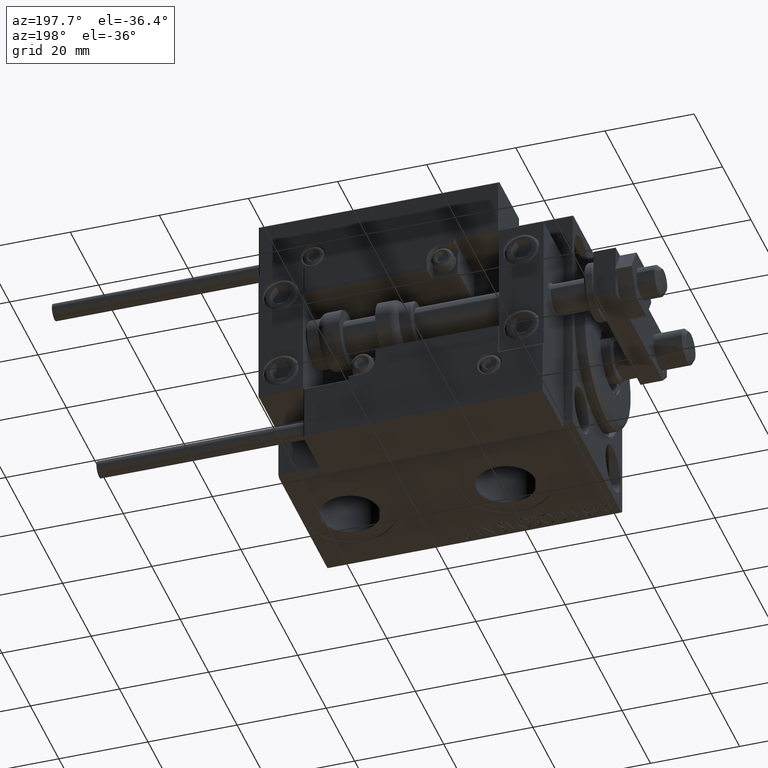
[diagram: clean part render]
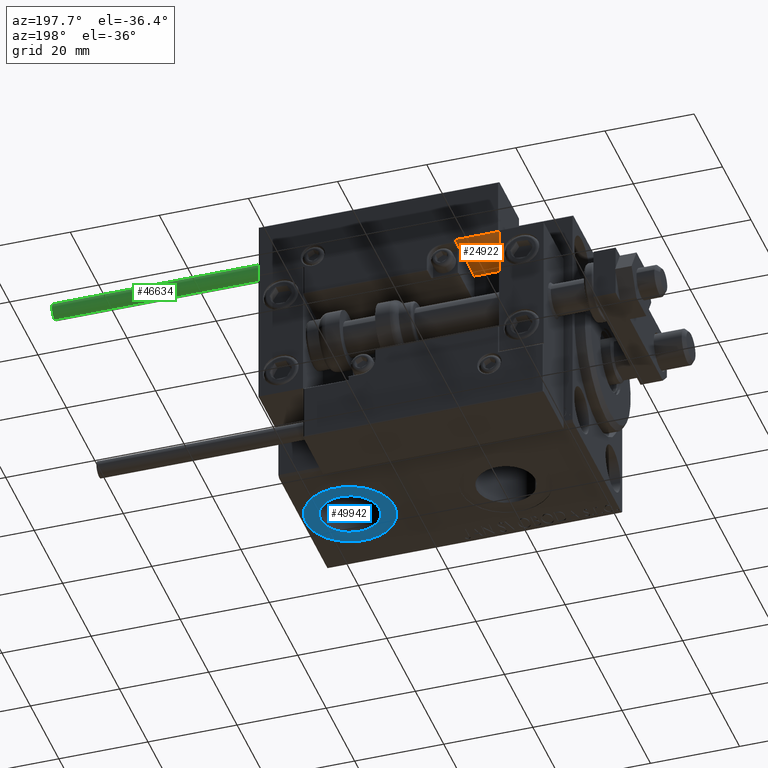
[diagram: same view with three faces highlighted in distinct colors, each labeled with its STEP entity id]
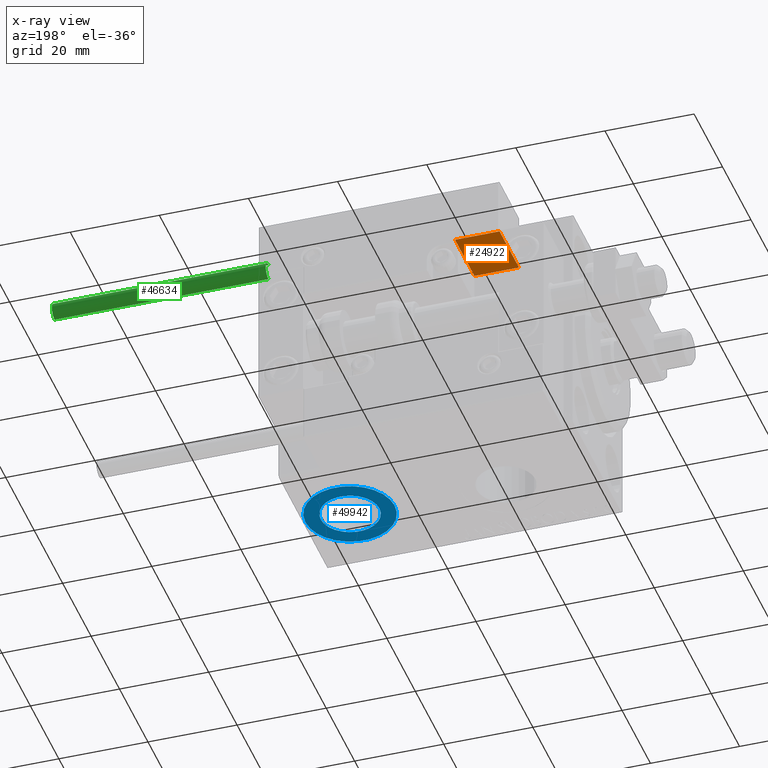
[diagram: x-ray of the same camera — body ghosted, the three highlighted faces saturated]
A machine part, auxiliary view with three faces highlighted in distinct colors.
The next image is the same camera in x-ray (body ghosted, the three faces saturated) — at least one of them is partly hidden behind the body in this view.
Their STEP definitions:

[orange] entity #24922 — the highlighted planar face has unit normal (0, 0, 1).
#106 = CARTESIAN_POINT ( 'NONE',  ( 27.00000000000006395, 7.000000000000007994, 0.000000000000000000 ) ) ;
#2960 = DIRECTION ( 'NONE',  ( 1.734723475976796001E-16, 1.000000000000000000, -0.000000000000000000 ) ) ;
#3652 = DIRECTION ( 'NONE',  ( -1.000000000000000000, 1.734723475976796001E-16, -0.000000000000000000 ) ) ;
#4124 = VERTEX_POINT ( 'NONE', #7669 ) ;
#6730 = LINE ( 'NONE', #29862, #39027 ) ;
#7273 = CARTESIAN_POINT ( 'NONE',  ( 17.00000000000000000, 7.000000000000009770, 0.000000000000000000 ) ) ;
#7507 = CARTESIAN_POINT ( 'NONE',  ( 17.00000000000000000, 7.000000000000009770, 13.70000000000000107 ) ) ;
#7669 = CARTESIAN_POINT ( 'NONE',  ( 17.00000000000000000, 7.000000000000009770, 0.000000000000000000 ) ) ;
#7772 = DIRECTION ( 'NONE',  ( 1.000000000000000000, -1.734723475976796001E-16, 0.000000000000000000 ) ) ;
#8526 = LINE ( 'NONE', #40125, #12982 ) ;
#10334 = DIRECTION ( 'NONE',  ( -0.000000000000000000, -0.000000000000000000, -1.000000000000000000 ) ) ;
#10604 = LINE ( 'NONE', #7507, #23503 ) ;
#11047 = ORIENTED_EDGE ( 'NONE', *, *, #26150, .T. ) ;
#11488 = CARTESIAN_POINT ( 'NONE',  ( 27.00000000000006395, 7.000000000000007994, 13.70000000000000107 ) ) ;
#12632 = DIRECTION ( 'NONE',  ( -0.000000000000000000, -0.000000000000000000, -1.000000000000000000 ) ) ;
#12982 = VECTOR ( 'NONE', #12632, 1000.000000000000000 ) ;
#14564 = VERTEX_POINT ( 'NONE', #11488 ) ;
#15009 = EDGE_LOOP ( 'NONE', ( #40142, #28550, #24274, #11047 ) ) ;
#15388 = AXIS2_PLACEMENT_3D ( 'NONE', #17872, #2960, #33790 ) ;
#17872 = CARTESIAN_POINT ( 'NONE',  ( 17.00000000000000000, 7.000000000000009770, 14.00000000000000000 ) ) ;
#17891 = VECTOR ( 'NONE', #7772, 1000.000000000000000 ) ;
#18945 = EDGE_CURVE ( 'NONE', #14564, #50613, #8526, .T. ) ;
#22962 = LINE ( 'NONE', #7273, #17891 ) ;
#23503 = VECTOR ( 'NONE', #3652, 1000.000000000000000 ) ;
#24274 = ORIENTED_EDGE ( 'NONE', *, *, #47004, .T. ) ;
#24922 = ADVANCED_FACE ( 'NONE', ( #42277 ), #45880, .F. ) ;
#26150 = EDGE_CURVE ( 'NONE', #4124, #50613, #22962, .T. ) ;
#28550 = ORIENTED_EDGE ( 'NONE', *, *, #47936, .T. ) ;
#29862 = CARTESIAN_POINT ( 'NONE',  ( 17.00000000000000000, 7.000000000000009770, 14.00000000000000000 ) ) ;
#30514 = VERTEX_POINT ( 'NONE', #45906 ) ;
#33790 = DIRECTION ( 'NONE',  ( -1.000000000000000000, 1.734723475976796001E-16, 0.000000000000000000 ) ) ;
#39027 = VECTOR ( 'NONE', #10334, 1000.000000000000000 ) ;
#40125 = CARTESIAN_POINT ( 'NONE',  ( 27.00000000000006395, 7.000000000000007994, 14.00000000000000000 ) ) ;
#40142 = ORIENTED_EDGE ( 'NONE', *, *, #18945, .F. ) ;
#42277 = FACE_OUTER_BOUND ( 'NONE', #15009, .T. ) ;
#45880 = PLANE ( 'NONE',  #15388 ) ;
#45906 = CARTESIAN_POINT ( 'NONE',  ( 17.00000000000000000, 7.000000000000009770, 13.70000000000000107 ) ) ;
#47004 = EDGE_CURVE ( 'NONE', #30514, #4124, #6730, .T. ) ;
#47936 = EDGE_CURVE ( 'NONE', #14564, #30514, #10604, .T. ) ;
#50613 = VERTEX_POINT ( 'NONE', #106 ) ;

[blue] entity #49942 — the highlighted planar face has unit normal (0, 0, -1).
#770 = DIRECTION ( 'NONE',  ( -1.000000000000000000, 0.000000000000000000, 0.000000000000000000 ) ) ;
#3029 = VERTEX_POINT ( 'NONE', #30298 ) ;
#6661 = VERTEX_POINT ( 'NONE', #40513 ) ;
#6684 = CARTESIAN_POINT ( 'NONE',  ( 55.50000000000000000, -6.938893903907228378E-15, -27.40000000000000568 ) ) ;
#7069 = CARTESIAN_POINT ( 'NONE',  ( 55.50000000000000000, -6.938893903907228378E-15, -27.40000000000000568 ) ) ;
#7165 = CIRCLE ( 'NONE', #41605, 10.00000000000000178 ) ;
#10593 = CIRCLE ( 'NONE', #48359, 10.00000000000000178 ) ;
#11170 = DIRECTION ( 'NONE',  ( 0.000000000000000000, 0.000000000000000000, -1.000000000000000000 ) ) ;
#13161 = PLANE ( 'NONE',  #30123 ) ;
#14079 = DIRECTION ( 'NONE',  ( 0.000000000000000000, 0.000000000000000000, -1.000000000000000000 ) ) ;
#14411 = EDGE_CURVE ( 'NONE', #3029, #6661, #7165, .T. ) ;
#14423 = CIRCLE ( 'NONE', #33278, 6.580000000000002736 ) ;
#14427 = ORIENTED_EDGE ( 'NONE', *, *, #14411, .T. ) ;
#15336 = ORIENTED_EDGE ( 'NONE', *, *, #42135, .F. ) ;
#15770 = DIRECTION ( 'NONE',  ( -1.000000000000000000, 0.000000000000000000, 0.000000000000000000 ) ) ;
#17506 = FACE_OUTER_BOUND ( 'NONE', #41064, .T. ) ;
#17942 = CARTESIAN_POINT ( 'NONE',  ( 55.50000000000000000, -6.938893903907228378E-15, -27.40000000000000568 ) ) ;
#18775 = DIRECTION ( 'NONE',  ( -1.000000000000000000, 0.000000000000000000, 0.000000000000000000 ) ) ;
#19316 = CIRCLE ( 'NONE', #43923, 6.580000000000002736 ) ;
#20306 = CARTESIAN_POINT ( 'NONE',  ( 55.50000000000000000, -6.938893903907228378E-15, -27.40000000000000568 ) ) ;
#20564 = EDGE_CURVE ( 'NONE', #6661, #3029, #10593, .T. ) ;
#21575 = CARTESIAN_POINT ( 'NONE',  ( 62.08000000000000540, -6.133076310068269336E-15, -27.40000000000000568 ) ) ;
#24496 = FACE_BOUND ( 'NONE', #34619, .T. ) ;
#28018 = VERTEX_POINT ( 'NONE', #49845 ) ;
#30123 = AXIS2_PLACEMENT_3D ( 'NONE', #45019, #36534, #40134 ) ;
#30298 = CARTESIAN_POINT ( 'NONE',  ( 45.50000000000000000, -6.938893903907228378E-15, -27.40000000000000568 ) ) ;
#31868 = DIRECTION ( 'NONE',  ( 0.000000000000000000, 0.000000000000000000, -1.000000000000000000 ) ) ;
#32772 = ORIENTED_EDGE ( 'NONE', *, *, #20564, .T. ) ;
#33278 = AXIS2_PLACEMENT_3D ( 'NONE', #20306, #31868, #770 ) ;
#33609 = DIRECTION ( 'NONE',  ( -1.000000000000000000, 0.000000000000000000, 0.000000000000000000 ) ) ;
#34619 = EDGE_LOOP ( 'NONE', ( #15336, #44126 ) ) ;
#36534 = DIRECTION ( 'NONE',  ( 0.000000000000000000, 0.000000000000000000, -1.000000000000000000 ) ) ;
#40134 = DIRECTION ( 'NONE',  ( -1.000000000000000000, 0.000000000000000000, -0.000000000000000000 ) ) ;
#40513 = CARTESIAN_POINT ( 'NONE',  ( 65.50000000000000000, -5.714247104759874530E-15, -27.40000000000000568 ) ) ;
#41064 = EDGE_LOOP ( 'NONE', ( #14427, #32772 ) ) ;
#41605 = AXIS2_PLACEMENT_3D ( 'NONE', #17942, #14079, #33609 ) ;
#42135 = EDGE_CURVE ( 'NONE', #28018, #45641, #19316, .T. ) ;
#42665 = DIRECTION ( 'NONE',  ( 0.000000000000000000, 0.000000000000000000, -1.000000000000000000 ) ) ;
#43778 = EDGE_CURVE ( 'NONE', #45641, #28018, #14423, .T. ) ;
#43923 = AXIS2_PLACEMENT_3D ( 'NONE', #6684, #42665, #18775 ) ;
#44126 = ORIENTED_EDGE ( 'NONE', *, *, #43778, .F. ) ;
#45019 = CARTESIAN_POINT ( 'NONE',  ( 55.50000000000000000, -6.938893903907228378E-15, -27.40000000000000568 ) ) ;
#45641 = VERTEX_POINT ( 'NONE', #21575 ) ;
#48359 = AXIS2_PLACEMENT_3D ( 'NONE', #7069, #11170, #15770 ) ;
#49845 = CARTESIAN_POINT ( 'NONE',  ( 48.92000000000000171, -6.938893903907228378E-15, -27.40000000000000568 ) ) ;
#49942 = ADVANCED_FACE ( 'NONE', ( #24496, #17506 ), #13161, .T. ) ;

[green] entity #46634 — the highlighted cylindrical surface (edge-blend (fillet) strip) has radius 1.9 mm, axis along (-1, -0, 0).
#1143 = DIRECTION ( 'NONE',  ( 0.000000000000000000, 0.000000000000000000, 1.000000000000000000 ) ) ;
#2599 = CIRCLE ( 'NONE', #14070, 1.899999999999999467 ) ;
#3026 = CARTESIAN_POINT ( 'NONE',  ( -1.899999999999999467, 0.000000000000000000, 48.00000000000000000 ) ) ;
#6968 = EDGE_CURVE ( 'NONE', #16484, #23035, #2599, .T. ) ;
#7877 = VECTOR ( 'NONE', #47870, 1000.000000000000000 ) ;
#9110 = DIRECTION ( 'NONE',  ( 1.000000000000000000, 0.000000000000000000, 0.000000000000000000 ) ) ;
#9367 = CARTESIAN_POINT ( 'NONE',  ( 0.000000000000000000, 0.000000000000000000, 0.000000000000000000 ) ) ;
#11899 = CARTESIAN_POINT ( 'NONE',  ( -1.899999999999999467, 0.000000000000000000, 0.000000000000000000 ) ) ;
#12287 = DIRECTION ( 'NONE',  ( -1.000000000000000000, 0.000000000000000000, 0.000000000000000000 ) ) ;
#12807 = LINE ( 'NONE', #28482, #31621 ) ;
#14070 = AXIS2_PLACEMENT_3D ( 'NONE', #9367, #1143, #9110 ) ;
#14587 = ORIENTED_EDGE ( 'NONE', *, *, #47606, .F. ) ;
#15570 = DIRECTION ( 'NONE',  ( 0.000000000000000000, 0.000000000000000000, 1.000000000000000000 ) ) ;
#16484 = VERTEX_POINT ( 'NONE', #26632 ) ;
#23027 = EDGE_CURVE ( 'NONE', #23872, #16484, #23497, .T. ) ;
#23035 = VERTEX_POINT ( 'NONE', #11899 ) ;
#23497 = LINE ( 'NONE', #47106, #7877 ) ;
#23872 = VERTEX_POINT ( 'NONE', #36302 ) ;
#24645 = DIRECTION ( 'NONE',  ( -0.000000000000000000, -0.000000000000000000, -1.000000000000000000 ) ) ;
#24890 = CYLINDRICAL_SURFACE ( 'NONE', #43955, 1.899999999999999467 ) ;
#26632 = CARTESIAN_POINT ( 'NONE',  ( 1.899999999999999467, 2.326828918379970872E-16, 0.000000000000000000 ) ) ;
#27248 = ORIENTED_EDGE ( 'NONE', *, *, #6968, .T. ) ;
#28219 = FACE_OUTER_BOUND ( 'NONE', #43336, .T. ) ;
#28482 = CARTESIAN_POINT ( 'NONE',  ( -1.899999999999999467, 0.000000000000000000, 48.00000000000000000 ) ) ;
#28727 = CARTESIAN_POINT ( 'NONE',  ( 0.000000000000000000, 0.000000000000000000, 48.00000000000000000 ) ) ;
#30814 = AXIS2_PLACEMENT_3D ( 'NONE', #31754, #15570, #46927 ) ;
#31621 = VECTOR ( 'NONE', #44164, 1000.000000000000000 ) ;
#31754 = CARTESIAN_POINT ( 'NONE',  ( 0.000000000000000000, 0.000000000000000000, 48.00000000000000000 ) ) ;
#33235 = ORIENTED_EDGE ( 'NONE', *, *, #47545, .F. ) ;
#33939 = ORIENTED_EDGE ( 'NONE', *, *, #23027, .T. ) ;
#36302 = CARTESIAN_POINT ( 'NONE',  ( 1.899999999999999467, 2.326828918379970872E-16, 48.00000000000000000 ) ) ;
#38194 = CIRCLE ( 'NONE', #30814, 1.899999999999999467 ) ;
#41973 = VERTEX_POINT ( 'NONE', #3026 ) ;
#43336 = EDGE_LOOP ( 'NONE', ( #14587, #33939, #27248, #33235 ) ) ;
#43955 = AXIS2_PLACEMENT_3D ( 'NONE', #28727, #24645, #12287 ) ;
#44164 = DIRECTION ( 'NONE',  ( -0.000000000000000000, -0.000000000000000000, -1.000000000000000000 ) ) ;
#46634 = ADVANCED_FACE ( 'NONE', ( #28219 ), #24890, .T. ) ;
#46927 = DIRECTION ( 'NONE',  ( 1.000000000000000000, 0.000000000000000000, 0.000000000000000000 ) ) ;
#47106 = CARTESIAN_POINT ( 'NONE',  ( 1.899999999999999467, 2.326828918379970872E-16, 48.00000000000000000 ) ) ;
#47545 = EDGE_CURVE ( 'NONE', #41973, #23035, #12807, .T. ) ;
#47606 = EDGE_CURVE ( 'NONE', #23872, #41973, #38194, .T. ) ;
#47870 = DIRECTION ( 'NONE',  ( -0.000000000000000000, -0.000000000000000000, -1.000000000000000000 ) ) ;